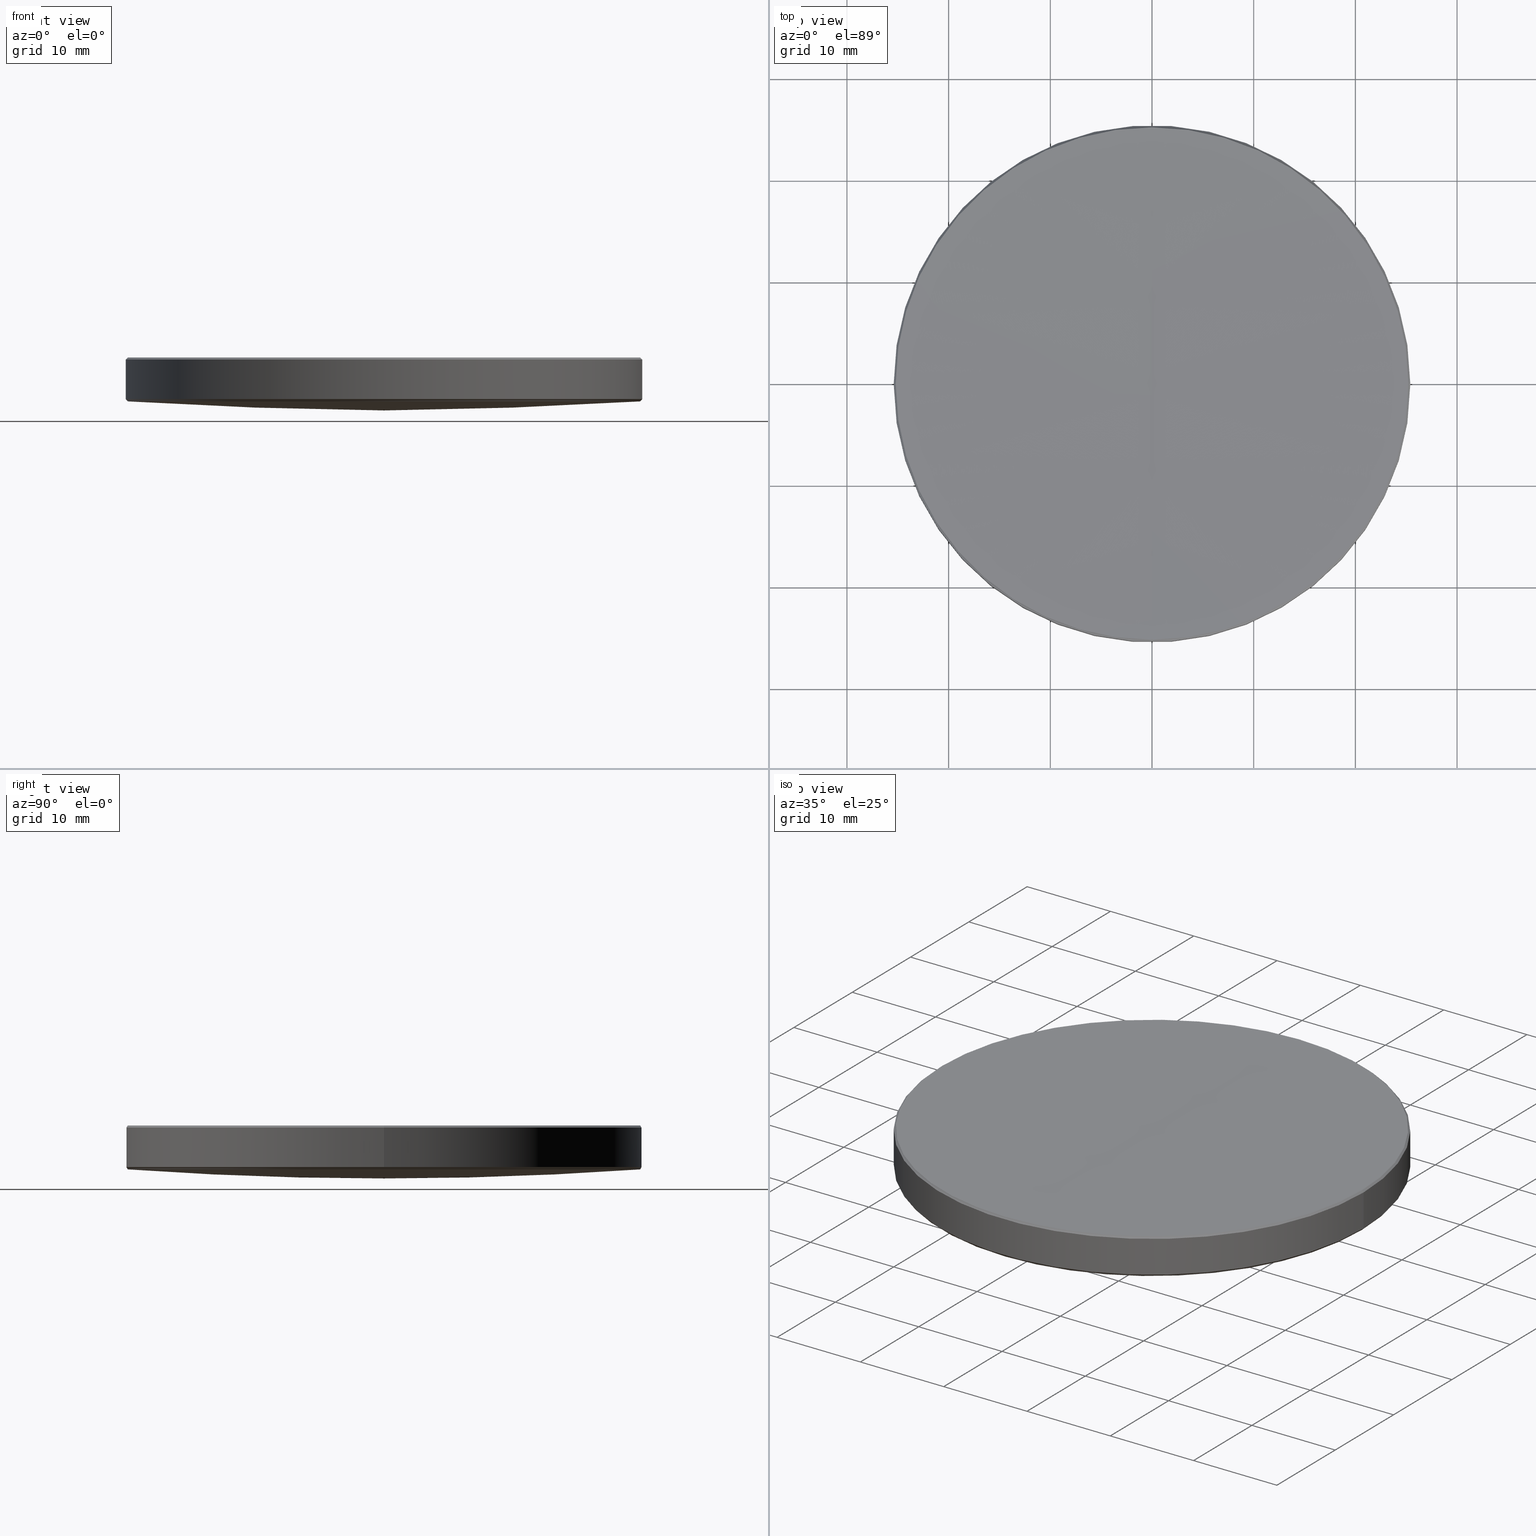
[diagram: canonical four-view strip — front | top / right | iso, engineering-drawing reading convention]
A machine part, canonical four-view strip (front | top / right | iso — engineering-drawing reading convention). The complete STEP part file that produces these views, byte-faithful:
ISO-10303-21;
HEADER;
FILE_DESCRIPTION (( 'STEP AP214' ),
    '1' );
FILE_NAME ('GLM2-050B-1000-UV.STEP',
    '2024-08-09T03:02:07',
    ( 'Windows User' ),
    ( 'P R C' ),
    'SwSTEP 2.0',
    'SolidWorks 2022',
    '' );
FILE_SCHEMA (( 'AUTOMOTIVE_DESIGN' ));
ENDSEC;

DATA;
#1 = DIRECTION ( 'NONE',  ( -0.000000000000000000, -0.000000000000000000, 1.000000000000000000 ) ) ;
#2 = CARTESIAN_POINT ( 'NONE',  ( 0.000000000000000000, 0.000000000000000000, 20.00000000000000000 ) ) ;
#3 = VECTOR ( 'NONE', #100, 1000.000000000000000 ) ;
#4 = ORIENTED_EDGE ( 'NONE', *, *, #16, .F. ) ;
#5 = EDGE_CURVE ( 'NONE', #118, #88, #39, .T. ) ;
#6 =( NAMED_UNIT ( * ) SI_UNIT ( $, .STERADIAN. ) SOLID_ANGLE_UNIT ( ) );
#7 = ORIENTED_EDGE ( 'NONE', *, *, #188, .T. ) ;
#8 = LINE ( 'NONE', #121, #133 ) ;
#9 = AXIS2_PLACEMENT_3D ( 'NONE', #222, #177, #22 ) ;
#10 = ORIENTED_EDGE ( 'NONE', *, *, #327, .T. ) ;
#11 = MECHANICAL_DESIGN_GEOMETRIC_PRESENTATION_REPRESENTATION (  '', ( #184 ), #329 ) ;
#12 = SURFACE_STYLE_USAGE ( .BOTH. , #43 ) ;
#13 = VERTEX_POINT ( 'NONE', #26 ) ;
#14 = APPLICATION_CONTEXT ( 'automotive_design' ) ;
#15 =( NAMED_UNIT ( * ) PLANE_ANGLE_UNIT ( ) SI_UNIT ( $, .RADIAN. ) );
#16 = EDGE_CURVE ( 'NONE', #221, #120, #324, .T. ) ;
#17 = ORIENTED_EDGE ( 'NONE', *, *, #188, .F. ) ;
#18 = AXIS2_PLACEMENT_3D ( 'NONE', #20, #99, #174 ) ;
#19 = AXIS2_PLACEMENT_3D ( 'NONE', #213, #139, #116 ) ;
#20 = CARTESIAN_POINT ( 'NONE',  ( 0.000000000000000000, 0.000000000000000000, 1597.335853264096386 ) ) ;
#21 = EDGE_CURVE ( 'NONE', #13, #142, #79, .T. ) ;
#22 = DIRECTION ( 'NONE',  ( -1.000000000000000000, 0.000000000000000000, 0.000000000000000000 ) ) ;
#23 = FILL_AREA_STYLE_COLOUR ( '', #284 ) ;
#24 = DIRECTION ( 'NONE',  ( 1.000000000000000000, 0.000000000000000000, 0.000000000000000000 ) ) ;
#25 = AXIS2_PLACEMENT_3D ( 'NONE', #36, #50, #227 ) ;
#26 = CARTESIAN_POINT ( 'NONE',  ( -25.39999999999999858, 0.000000000000000000, 13.21592418636929978 ) ) ;
#27 = CARTESIAN_POINT ( 'NONE',  ( 0.000000000000000000, 0.000000000000000000, 17.09999999999989484 ) ) ;
#28 = DIRECTION ( 'NONE',  ( -1.000000000000000000, 0.000000000000000000, 0.000000000000000000 ) ) ;
#29 = AXIS2_PLACEMENT_3D ( 'NONE', #98, #125, #175 ) ;
#30 = ADVANCED_FACE ( 'NONE', ( #276 ), #244, .T. ) ;
#31 = DIRECTION ( 'NONE',  ( -0.000000000000000000, -0.000000000000000000, -1.000000000000000000 ) ) ;
#32 = PRESENTATION_LAYER_ASSIGNMENT (  '', '', ( #184 ) ) ;
#33 = ORIENTED_EDGE ( 'NONE', *, *, #262, .F. ) ;
#34 = CARTESIAN_POINT ( 'NONE',  ( 0.000000000000000000, 0.000000000000000000, 0.000000000000000000 ) ) ;
#35 = ORIENTED_EDGE ( 'NONE', *, *, #21, .T. ) ;
#36 = CARTESIAN_POINT ( 'NONE',  ( 0.000000000000000000, 0.000000000000000000, 1597.335853264096386 ) ) ;
#37 = ORIENTED_EDGE ( 'NONE', *, *, #91, .F. ) ;
#38 = MANIFOLD_SOLID_BREP ( '����1', #54 ) ;
#39 = CIRCLE ( 'NONE', #25, 1580.240000000000236 ) ;
#40 = CIRCLE ( 'NONE', #309, 25.20315217857431023 ) ;
#41 = VERTEX_POINT ( 'NONE', #202 ) ;
#42 = EDGE_CURVE ( 'NONE', #88, #240, #316, .T. ) ;
#43 = SURFACE_SIDE_STYLE ('',( #220 ) ) ;
#44 = ORIENTED_EDGE ( 'NONE', *, *, #273, .F. ) ;
#45 = CARTESIAN_POINT ( 'NONE',  ( 0.000000000000000000, 0.000000000000000000, 12.98581782909002946 ) ) ;
#46 = VERTEX_POINT ( 'NONE', #242 ) ;
#47 = ADVANCED_FACE ( 'NONE', ( #225 ), #58, .T. ) ;
#48 = PRODUCT_DEFINITION_FORMATION_WITH_SPECIFIED_SOURCE ( '�κ�', '', #179, .NOT_KNOWN. ) ;
#49 = DIRECTION ( 'NONE',  ( -1.000000000000000000, 0.000000000000000000, 0.000000000000000000 ) ) ;
#50 = DIRECTION ( 'NONE',  ( -1.000000000000000000, 1.224646799147353207E-16, 0.000000000000000000 ) ) ;
#51 = FACE_OUTER_BOUND ( 'NONE', #148, .T. ) ;
#52 = CARTESIAN_POINT ( 'NONE',  ( 0.000000000000000000, 0.000000000000000000, 17.29684782142548727 ) ) ;
#53 = CARTESIAN_POINT ( 'NONE',  ( -25.39999999999999858, 3.110602869834276865E-15, 13.21592418636929978 ) ) ;
#54 = CLOSED_SHELL ( 'NONE', ( #241, #281, #180, #30, #158, #123, #163, #81, #232, #47 ) ) ;
#55 = AXIS2_PLACEMENT_3D ( 'NONE', #305, #76, #178 ) ;
#56 = SURFACE_STYLE_USAGE ( .BOTH. , #71 ) ;
#57 = DIRECTION ( 'NONE',  ( -0.000000000000000000, -0.000000000000000000, 1.000000000000000000 ) ) ;
#58 = CONICAL_SURFACE ( 'NONE', #299, 25.20315217857427470, 0.7853981633977743515 ) ;
#59 = DIRECTION ( 'NONE',  ( -1.000000000000000000, 0.000000000000000000, 0.000000000000000000 ) ) ;
#60 = CARTESIAN_POINT ( 'NONE',  ( -25.20315217857431023, 0.000000000000000000, 17.29684782142548727 ) ) ;
#61 = AXIS2_PLACEMENT_3D ( 'NONE', #251, #228, #250 ) ;
#62 = ORIENTED_EDGE ( 'NONE', *, *, #21, .F. ) ;
#63 = APPLICATION_PROTOCOL_DEFINITION ( 'draft international standard', 'automotive_design', 1998, #157 ) ;
#64 = ORIENTED_EDGE ( 'NONE', *, *, #16, .T. ) ;
#65 = AXIS2_PLACEMENT_3D ( 'NONE', #304, #271, #150 ) ;
#66 = AXIS2_PLACEMENT_3D ( 'NONE', #85, #59, #254 ) ;
#67 = ORIENTED_EDGE ( 'NONE', *, *, #295, .T. ) ;
#68 =( NAMED_UNIT ( * ) SI_UNIT ( $, .STERADIAN. ) SOLID_ANGLE_UNIT ( ) );
#69 = ORIENTED_EDGE ( 'NONE', *, *, #5, .F. ) ;
#70 = CARTESIAN_POINT ( 'NONE',  ( 0.000000000000000000, 0.000000000000000000, 1597.335853264096386 ) ) ;
#71 = SURFACE_SIDE_STYLE ('',( #126 ) ) ;
#72 = PRODUCT_DEFINITION_SHAPE ( 'NONE', 'NONE',  #131 ) ;
#73 = DIRECTION ( 'NONE',  ( -1.000000000000000000, 1.224646799147353207E-16, 0.000000000000000000 ) ) ;
#74 = FACE_OUTER_BOUND ( 'NONE', #87, .T. ) ;
#75 =( NAMED_UNIT ( * ) PLANE_ANGLE_UNIT ( ) SI_UNIT ( $, .RADIAN. ) );
#76 = DIRECTION ( 'NONE',  ( 0.000000000000000000, 0.000000000000000000, -1.000000000000000000 ) ) ;
#77 = CYLINDRICAL_SURFACE ( 'NONE', #108, 25.39999999999999858 ) ;
#78 = DIRECTION ( 'NONE',  ( -0.000000000000000000, -0.000000000000000000, -1.000000000000000000 ) ) ;
#79 = CIRCLE ( 'NONE', #9, 25.39999999999999858 ) ;
#80 = CONICAL_SURFACE ( 'NONE', #199, 25.39999999999999858, 0.7141275475421955399 ) ;
#81 = ADVANCED_FACE ( 'NONE', ( #196 ), #103, .F. ) ;
#82 = CIRCLE ( 'NONE', #61, 25.39999999999999858 ) ;
#83 = CIRCLE ( 'NONE', #226, 25.20315217857431023 ) ;
#84 = DIRECTION ( 'NONE',  ( 0.000000000000000000, 1.000000000000000000, 0.000000000000000000 ) ) ;
#85 = CARTESIAN_POINT ( 'NONE',  ( 0.000000000000000000, 0.000000000000000000, 1597.335853264096386 ) ) ;
#86 = DIRECTION ( 'NONE',  ( 0.000000000000000000, 0.000000000000000000, 1.000000000000000000 ) ) ;
#87 = EDGE_LOOP ( 'NONE', ( #191, #217, #239, #259, #62 ) ) ;
#88 = VERTEX_POINT ( 'NONE', #171 ) ;
#89 = ORIENTED_EDGE ( 'NONE', *, *, #208, .F. ) ;
#90 = CARTESIAN_POINT ( 'NONE',  ( -25.39999999999999858, 0.000000000000000000, 17.09999999999989484 ) ) ;
#91 = EDGE_CURVE ( 'NONE', #46, #142, #270, .T. ) ;
#92 = ORIENTED_EDGE ( 'NONE', *, *, #247, .T. ) ;
#93 = DIRECTION ( 'NONE',  ( 1.000000000000000000, 0.000000000000000000, 0.000000000000000000 ) ) ;
#94 = ORIENTED_EDGE ( 'NONE', *, *, #302, .F. ) ;
#95 = CIRCLE ( 'NONE', #265, 25.39999999999999858 ) ;
#96 = VERTEX_POINT ( 'NONE', #268 ) ;
#97 =( NAMED_UNIT ( * ) SI_UNIT ( $, .STERADIAN. ) SOLID_ANGLE_UNIT ( ) );
#98 = CARTESIAN_POINT ( 'NONE',  ( 0.000000000000000000, 0.000000000000000000, 17.29684782142548727 ) ) ;
#99 = DIRECTION ( 'NONE',  ( 1.000000000000000000, 0.000000000000000000, 0.000000000000000000 ) ) ;
#100 = DIRECTION ( 'NONE',  ( -0.000000000000000000, -0.000000000000000000, -1.000000000000000000 ) ) ;
#101 = FILL_AREA_STYLE ('',( #23 ) ) ;
#102 = DIRECTION ( 'NONE',  ( 1.000000000000000000, 0.000000000000000000, 0.000000000000000000 ) ) ;
#103 = SPHERICAL_SURFACE ( 'NONE', #236, 1580.240000000000236 ) ;
#104 = DIRECTION ( 'NONE',  ( 0.000000000000000000, 0.000000000000000000, -1.000000000000000000 ) ) ;
#105 = DIRECTION ( 'NONE',  ( -0.000000000000000000, -0.000000000000000000, -1.000000000000000000 ) ) ;
#106 = AXIS2_PLACEMENT_3D ( 'NONE', #34, #86, #283 ) ;
#107 = EDGE_CURVE ( 'NONE', #143, #170, #40, .T. ) ;
#108 = AXIS2_PLACEMENT_3D ( 'NONE', #2, #105, #187 ) ;
#109 = CIRCLE ( 'NONE', #209, 25.20315217857431023 ) ;
#110 = DIRECTION ( 'NONE',  ( 0.000000000000000000, 0.000000000000000000, -1.000000000000000000 ) ) ;
#111 = ORIENTED_EDGE ( 'NONE', *, *, #252, .T. ) ;
#112 = VERTEX_POINT ( 'NONE', #149 ) ;
#113 = DIRECTION ( 'NONE',  ( 0.000000000000000000, 0.000000000000000000, -1.000000000000000000 ) ) ;
#114 = ORIENTED_EDGE ( 'NONE', *, *, #107, .T. ) ;
#115 = EDGE_CURVE ( 'NONE', #118, #143, #144, .T. ) ;
#116 = DIRECTION ( 'NONE',  ( 1.000000000000000000, 0.000000000000000000, 0.000000000000000000 ) ) ;
#117 = VECTOR ( 'NONE', #215, 1000.000000000000227 ) ;
#118 = VERTEX_POINT ( 'NONE', #200 ) ;
#119 = PRESENTATION_STYLE_ASSIGNMENT (( #12 ) ) ;
#120 = VERTEX_POINT ( 'NONE', #301 ) ;
#121 = CARTESIAN_POINT ( 'NONE',  ( 25.20315217857427470, 3.086495964391462737E-15, 17.29684782142548727 ) ) ;
#122 = EDGE_LOOP ( 'NONE', ( #69, #211, #114, #238 ) ) ;
#123 = ADVANCED_FACE ( 'NONE', ( #298 ), #77, .T. ) ;
#124 = CIRCLE ( 'NONE', #168, 25.20055964190958520 ) ;
#125 = DIRECTION ( 'NONE',  ( -0.000000000000000000, -0.000000000000000000, 1.000000000000000000 ) ) ;
#126 = SURFACE_STYLE_FILL_AREA ( #101 ) ;
#127 = DIRECTION ( 'NONE',  ( 0.000000000000000000, 1.000000000000000000, 0.000000000000000000 ) ) ;
#128 = CARTESIAN_POINT ( 'NONE',  ( 0.000000000000000000, 0.000000000000000000, 13.21592418636929978 ) ) ;
#129 = DIRECTION ( 'NONE',  ( 0.000000000000000000, 0.000000000000000000, -1.000000000000000000 ) ) ;
#130 = CARTESIAN_POINT ( 'NONE',  ( 0.000000000000000000, 0.000000000000000000, 13.21592418636929978 ) ) ;
#131 = PRODUCT_DEFINITION ( 'δ֪', '', #48, #172 ) ;
#132 = PRESENTATION_LAYER_ASSIGNMENT (  '', '', ( #269 ) ) ;
#133 = VECTOR ( 'NONE', #192, 1000.000000000000227 ) ;
#134 = CARTESIAN_POINT ( 'NONE',  ( -25.39999999999999858, 0.000000000000000000, 20.00000000000000000 ) ) ;
#135 = EDGE_CURVE ( 'NONE', #96, #323, #246, .T. ) ;
#136 = CIRCLE ( 'NONE', #310, 25.20055964190958520 ) ;
#137 = CARTESIAN_POINT ( 'NONE',  ( 25.39999999999999858, 3.110602869834276865E-15, 13.21592418636929978 ) ) ;
#138 = ORIENTED_EDGE ( 'NONE', *, *, #42, .F. ) ;
#139 = DIRECTION ( 'NONE',  ( -0.000000000000000000, -0.000000000000000000, 1.000000000000000000 ) ) ;
#140 = ORIENTED_EDGE ( 'NONE', *, *, #208, .T. ) ;
#141 = SHAPE_DEFINITION_REPRESENTATION ( #72, #197 ) ;
#142 = VERTEX_POINT ( 'NONE', #137 ) ;
#143 = VERTEX_POINT ( 'NONE', #159 ) ;
#144 = CIRCLE ( 'NONE', #18, 1580.240000000000236 ) ;
#145 = AXIS2_PLACEMENT_3D ( 'NONE', #45, #194, #296 ) ;
#146 = ORIENTED_EDGE ( 'NONE', *, *, #278, .T. ) ;
#147 = LINE ( 'NONE', #289, #117 ) ;
#148 = EDGE_LOOP ( 'NONE', ( #165, #315, #167, #10 ) ) ;
#149 = CARTESIAN_POINT ( 'NONE',  ( 0.000000000000000000, 25.20055964190926545, 12.98581782909005788 ) ) ;
#150 = DIRECTION ( 'NONE',  ( 0.000000000000000000, 1.000000000000000000, 0.000000000000000000 ) ) ;
#151 = EDGE_CURVE ( 'NONE', #112, #46, #124, .T. ) ;
#152 = DIRECTION ( 'NONE',  ( 1.000000000000000000, 0.000000000000000000, 0.000000000000000000 ) ) ;
#153 = DIRECTION ( 'NONE',  ( -1.000000000000000000, 0.000000000000000000, 0.000000000000000000 ) ) ;
#154 = DIRECTION ( 'NONE',  ( -0.6549583843073308875, 8.020926889166948068E-17, 0.7556649487871797133 ) ) ;
#155 = UNCERTAINTY_MEASURE_WITH_UNIT (LENGTH_MEASURE( 1.000000000000000082E-05 ), #330, 'distance_accuracy_value', 'NONE');
#156 = DIRECTION ( 'NONE',  ( -1.000000000000000000, 0.000000000000000000, 0.000000000000000000 ) ) ;
#157 = APPLICATION_CONTEXT ( 'automotive_design' ) ;
#158 = ADVANCED_FACE ( 'NONE', ( #303 ), #206, .T. ) ;
#159 = CARTESIAN_POINT ( 'NONE',  ( 0.000000000000000000, 25.20315217857234202, 17.29684782142537713 ) ) ;
#160 = SPHERICAL_SURFACE ( 'NONE', #230, 356.6899999999999977 ) ;
#161 = ORIENTED_EDGE ( 'NONE', *, *, #107, .F. ) ;
#162 = APPLICATION_PROTOCOL_DEFINITION ( 'draft international standard', 'automotive_design', 1998, #14 ) ;
#163 = ADVANCED_FACE ( 'NONE', ( #282 ), #160, .T. ) ;
#164 = EDGE_LOOP ( 'NONE', ( #285, #320, #33, #260, #161 ) ) ;
#165 = ORIENTED_EDGE ( 'NONE', *, *, #115, .F. ) ;
#166 = FILL_AREA_STYLE ('',( #263 ) ) ;
#167 = ORIENTED_EDGE ( 'NONE', *, *, #42, .T. ) ;
#168 = AXIS2_PLACEMENT_3D ( 'NONE', #210, #229, #311 ) ;
#169 =( LENGTH_UNIT ( ) NAMED_UNIT ( * ) SI_UNIT ( .MILLI., .METRE. ) );
#170 = VERTEX_POINT ( 'NONE', #60 ) ;
#171 = CARTESIAN_POINT ( 'NONE',  ( -3.086495964391225684E-15, -25.20315217857234202, 17.29684782142537713 ) ) ;
#172 = PRODUCT_DEFINITION_CONTEXT ( 'detailed design', #157, 'design' ) ;
#173 =( GEOMETRIC_REPRESENTATION_CONTEXT ( 3 ) GLOBAL_UNCERTAINTY_ASSIGNED_CONTEXT ( ( #155 ) ) GLOBAL_UNIT_ASSIGNED_CONTEXT ( ( #330, #75, #97 ) ) REPRESENTATION_CONTEXT ( 'NONE', 'WORKASPACE' ) );
#174 = DIRECTION ( 'NONE',  ( 0.000000000000000000, 0.000000000000000000, -1.000000000000000000 ) ) ;
#175 = DIRECTION ( 'NONE',  ( 1.000000000000000000, 0.000000000000000000, 0.000000000000000000 ) ) ;
#176 = CARTESIAN_POINT ( 'NONE',  ( 0.000000000000000000, 0.000000000000000000, 368.7844798469995453 ) ) ;
#177 = DIRECTION ( 'NONE',  ( -0.000000000000000000, -0.000000000000000000, 1.000000000000000000 ) ) ;
#178 = DIRECTION ( 'NONE',  ( 1.000000000000000000, 0.000000000000000000, 0.000000000000000000 ) ) ;
#179 = PRODUCT ( 'GLM2-050B-1000-UV', 'GLM2-050B-1000-UV', '', ( #286 ) ) ;
#180 = ADVANCED_FACE ( 'NONE', ( #51 ), #312, .F. ) ;
#181 = AXIS2_PLACEMENT_3D ( 'NONE', #182, #73, #224 ) ;
#182 = CARTESIAN_POINT ( 'NONE',  ( 0.000000000000000000, 0.000000000000000000, 368.7844798469995453 ) ) ;
#183 = CARTESIAN_POINT ( 'NONE',  ( 0.000000000000000000, 0.000000000000000000, 368.7844798469995453 ) ) ;
#184 = STYLED_ITEM ( 'NONE', ( #119 ), #197 ) ;
#185 = EDGE_CURVE ( 'NONE', #323, #13, #255, .T. ) ;
#186 = COLOUR_RGB ( '',1.000000000000000000, 1.000000000000000000, 1.000000000000000000 ) ;
#187 = DIRECTION ( 'NONE',  ( -1.000000000000000000, 0.000000000000000000, 0.000000000000000000 ) ) ;
#188 = EDGE_CURVE ( 'NONE', #221, #112, #253, .T. ) ;
#189 = VECTOR ( 'NONE', #154, 999.9999999999998863 ) ;
#190 = ORIENTED_EDGE ( 'NONE', *, *, #151, .T. ) ;
#191 = ORIENTED_EDGE ( 'NONE', *, *, #252, .F. ) ;
#192 = DIRECTION ( 'NONE',  ( 0.7071067811867780550, 8.659560562357755501E-17, -0.7071067811863169794 ) ) ;
#193 = UNCERTAINTY_MEASURE_WITH_UNIT (LENGTH_MEASURE( 1.000000000000000082E-05 ), #237, 'distance_accuracy_value', 'NONE');
#194 = DIRECTION ( 'NONE',  ( 0.000000000000000000, 0.000000000000000000, -1.000000000000000000 ) ) ;
#195 = ORIENTED_EDGE ( 'NONE', *, *, #135, .F. ) ;
#196 = FACE_OUTER_BOUND ( 'NONE', #122, .T. ) ;
#197 = ADVANCED_BREP_SHAPE_REPRESENTATION ( 'GLM2-050B-1000-UV', ( #38, #106 ), #300 ) ;
#198 = CARTESIAN_POINT ( 'NONE',  ( 25.39999999999999858, 0.000000000000000000, 13.21592418636929978 ) ) ;
#199 = AXIS2_PLACEMENT_3D ( 'NONE', #128, #331, #102 ) ;
#200 = CARTESIAN_POINT ( 'NONE',  ( 0.000000000000000000, 9.676179289423068622E-14, 17.09585326409612804 ) ) ;
#201 = CARTESIAN_POINT ( 'NONE',  ( 0.000000000000000000, 2.184096333939347168E-14, 12.09447984699951739 ) ) ;
#202 = CARTESIAN_POINT ( 'NONE',  ( -25.20055964190958520, 3.098390670026466009E-15, 12.98581782909002946 ) ) ;
#203 = CARTESIAN_POINT ( 'NONE',  ( 25.20315217857431023, 3.098549417112872365E-15, 17.29684782142548727 ) ) ;
#204 = CARTESIAN_POINT ( 'NONE',  ( 0.000000000000000000, 0.000000000000000000, 17.29684782142548727 ) ) ;
#205 = CARTESIAN_POINT ( 'NONE',  ( 0.000000000000000000, 0.000000000000000000, 17.29684782142548727 ) ) ;
#206 = CYLINDRICAL_SURFACE ( 'NONE', #294, 25.39999999999999858 ) ;
#207 = CIRCLE ( 'NONE', #55, 25.20055964190958520 ) ;
#208 = EDGE_CURVE ( 'NONE', #96, #142, #280, .T. ) ;
#209 = AXIS2_PLACEMENT_3D ( 'NONE', #205, #57, #152 ) ;
#210 = CARTESIAN_POINT ( 'NONE',  ( 0.000000000000000000, 0.000000000000000000, 12.98581782909002946 ) ) ;
#211 = ORIENTED_EDGE ( 'NONE', *, *, #115, .T. ) ;
#212 = ORIENTED_EDGE ( 'NONE', *, *, #218, .F. ) ;
#213 = CARTESIAN_POINT ( 'NONE',  ( 0.000000000000000000, 0.000000000000000000, 13.21592418636929978 ) ) ;
#214 = AXIS2_PLACEMENT_3D ( 'NONE', #332, #129, #156 ) ;
#215 = DIRECTION ( 'NONE',  ( -0.7071067811867780550, 0.000000000000000000, -0.7071067811863169794 ) ) ;
#216 = ORIENTED_EDGE ( 'NONE', *, *, #278, .F. ) ;
#217 = ORIENTED_EDGE ( 'NONE', *, *, #295, .F. ) ;
#218 = EDGE_CURVE ( 'NONE', #170, #88, #109, .T. ) ;
#219 = EDGE_LOOP ( 'NONE', ( #233, #140, #292, #264 ) ) ;
#220 = SURFACE_STYLE_FILL_AREA ( #166 ) ;
#221 = VERTEX_POINT ( 'NONE', #201 ) ;
#222 = CARTESIAN_POINT ( 'NONE',  ( 0.000000000000000000, 0.000000000000000000, 13.21592418636929978 ) ) ;
#223 = PRODUCT_RELATED_PRODUCT_CATEGORY ( 'part', '', ( #179 ) ) ;
#224 = DIRECTION ( 'NONE',  ( -1.224646799147353207E-16, -1.000000000000000000, 0.000000000000000000 ) ) ;
#225 = FACE_OUTER_BOUND ( 'NONE', #287, .T. ) ;
#226 = AXIS2_PLACEMENT_3D ( 'NONE', #258, #313, #291 ) ;
#227 = DIRECTION ( 'NONE',  ( -1.224646799147353207E-16, -1.000000000000000000, 0.000000000000000000 ) ) ;
#228 = DIRECTION ( 'NONE',  ( 0.000000000000000000, 0.000000000000000000, -1.000000000000000000 ) ) ;
#229 = DIRECTION ( 'NONE',  ( 0.000000000000000000, 0.000000000000000000, -1.000000000000000000 ) ) ;
#230 = AXIS2_PLACEMENT_3D ( 'NONE', #176, #328, #84 ) ;
#231 = CARTESIAN_POINT ( 'NONE',  ( 0.000000000000000000, 0.000000000000000000, 20.00000000000000000 ) ) ;
#232 = ADVANCED_FACE ( 'NONE', ( #74 ), #80, .T. ) ;
#233 = ORIENTED_EDGE ( 'NONE', *, *, #262, .T. ) ;
#234 = FACE_OUTER_BOUND ( 'NONE', #261, .T. ) ;
#235 = EDGE_LOOP ( 'NONE', ( #4, #7, #190, #92 ) ) ;
#236 = AXIS2_PLACEMENT_3D ( 'NONE', #70, #49, #127 ) ;
#237 =( LENGTH_UNIT ( ) NAMED_UNIT ( * ) SI_UNIT ( .MILLI., .METRE. ) );
#238 = ORIENTED_EDGE ( 'NONE', *, *, #218, .T. ) ;
#239 = ORIENTED_EDGE ( 'NONE', *, *, #247, .F. ) ;
#240 = VERTEX_POINT ( 'NONE', #203 ) ;
#241 = ADVANCED_FACE ( 'NONE', ( #307 ), #266, .T. ) ;
#242 = CARTESIAN_POINT ( 'NONE',  ( 25.20055964190958520, 0.000000000000000000, 12.98581782909002946 ) ) ;
#243 = DIRECTION ( 'NONE',  ( -0.000000000000000000, -0.000000000000000000, 1.000000000000000000 ) ) ;
#244 = SPHERICAL_SURFACE ( 'NONE', #65, 356.6899999999999977 ) ;
#245 = DIRECTION ( 'NONE',  ( 1.000000000000000000, -0.000000000000000000, 0.000000000000000000 ) ) ;
#246 = CIRCLE ( 'NONE', #293, 25.39999999999999858 ) ;
#247 = EDGE_CURVE ( 'NONE', #46, #120, #207, .T. ) ;
#248 = CONICAL_SURFACE ( 'NONE', #19, 25.39999999999999858, 0.7141275475421955399 ) ;
#249 = DIRECTION ( 'NONE',  ( 0.6549583843073308875, 0.000000000000000000, 0.7556649487871797133 ) ) ;
#250 = DIRECTION ( 'NONE',  ( 1.000000000000000000, 0.000000000000000000, 0.000000000000000000 ) ) ;
#251 = CARTESIAN_POINT ( 'NONE',  ( 0.000000000000000000, 0.000000000000000000, 17.09999999999989484 ) ) ;
#252 = EDGE_CURVE ( 'NONE', #41, #13, #274, .T. ) ;
#253 = CIRCLE ( 'NONE', #275, 356.6899999999999977 ) ;
#254 = DIRECTION ( 'NONE',  ( 0.000000000000000000, 1.000000000000000000, 0.000000000000000000 ) ) ;
#255 = LINE ( 'NONE', #134, #318 ) ;
#256 = MECHANICAL_DESIGN_GEOMETRIC_PRESENTATION_REPRESENTATION (  '', ( #269 ), #173 ) ;
#257 = CIRCLE ( 'NONE', #145, 25.20055964190958520 ) ;
#258 = CARTESIAN_POINT ( 'NONE',  ( 0.000000000000000000, 0.000000000000000000, 17.29684782142548727 ) ) ;
#259 = ORIENTED_EDGE ( 'NONE', *, *, #91, .T. ) ;
#260 = ORIENTED_EDGE ( 'NONE', *, *, #308, .F. ) ;
#261 = EDGE_LOOP ( 'NONE', ( #216, #111, #44, #37, #267 ) ) ;
#262 = EDGE_CURVE ( 'NONE', #323, #96, #82, .T. ) ;
#263 = FILL_AREA_STYLE_COLOUR ( '', #186 ) ;
#264 = ORIENTED_EDGE ( 'NONE', *, *, #185, .F. ) ;
#265 = AXIS2_PLACEMENT_3D ( 'NONE', #130, #1, #28 ) ;
#266 = CONICAL_SURFACE ( 'NONE', #214, 25.20315217857427470, 0.7853981633977743515 ) ;
#267 = ORIENTED_EDGE ( 'NONE', *, *, #151, .F. ) ;
#268 = CARTESIAN_POINT ( 'NONE',  ( 25.39999999999999858, 3.110602869834276865E-15, 17.09999999999989484 ) ) ;
#269 = STYLED_ITEM ( 'NONE', ( #326 ), #38 ) ;
#270 = LINE ( 'NONE', #198, #279 ) ;
#271 = DIRECTION ( 'NONE',  ( -1.000000000000000000, 0.000000000000000000, 0.000000000000000000 ) ) ;
#272 = DIRECTION ( 'NONE',  ( -1.000000000000000000, 0.000000000000000000, 0.000000000000000000 ) ) ;
#273 = EDGE_CURVE ( 'NONE', #142, #13, #95, .T. ) ;
#274 = LINE ( 'NONE', #53, #189 ) ;
#275 = AXIS2_PLACEMENT_3D ( 'NONE', #183, #245, #104 ) ;
#276 = FACE_OUTER_BOUND ( 'NONE', #290, .T. ) ;
#277 = CARTESIAN_POINT ( 'NONE',  ( 25.39999999999999858, 3.110602869834276865E-15, 20.00000000000000000 ) ) ;
#278 = EDGE_CURVE ( 'NONE', #41, #112, #257, .T. ) ;
#279 = VECTOR ( 'NONE', #249, 999.9999999999998863 ) ;
#280 = LINE ( 'NONE', #277, #3 ) ;
#281 = ADVANCED_FACE ( 'NONE', ( #234 ), #248, .T. ) ;
#282 = FACE_OUTER_BOUND ( 'NONE', #235, .T. ) ;
#283 = DIRECTION ( 'NONE',  ( 1.000000000000000000, 0.000000000000000000, 0.000000000000000000 ) ) ;
#284 = COLOUR_RGB ( '',1.000000000000000000, 1.000000000000000000, 1.000000000000000000 ) ;
#285 = ORIENTED_EDGE ( 'NONE', *, *, #327, .F. ) ;
#286 = PRODUCT_CONTEXT ( 'NONE', #14, 'mechanical' ) ;
#287 = EDGE_LOOP ( 'NONE', ( #94, #138, #212, #322, #195 ) ) ;
#288 = EDGE_LOOP ( 'NONE', ( #89, #314, #317, #35 ) ) ;
#289 = CARTESIAN_POINT ( 'NONE',  ( -25.20315217857427470, 0.000000000000000000, 17.29684782142548727 ) ) ;
#290 = EDGE_LOOP ( 'NONE', ( #17, #64, #67, #146 ) ) ;
#291 = DIRECTION ( 'NONE',  ( 1.000000000000000000, 0.000000000000000000, 0.000000000000000000 ) ) ;
#292 = ORIENTED_EDGE ( 'NONE', *, *, #273, .T. ) ;
#293 = AXIS2_PLACEMENT_3D ( 'NONE', #27, #110, #24 ) ;
#294 = AXIS2_PLACEMENT_3D ( 'NONE', #231, #78, #272 ) ;
#295 = EDGE_CURVE ( 'NONE', #120, #41, #136, .T. ) ;
#296 = DIRECTION ( 'NONE',  ( 1.000000000000000000, 0.000000000000000000, 0.000000000000000000 ) ) ;
#297 = UNCERTAINTY_MEASURE_WITH_UNIT (LENGTH_MEASURE( 1.000000000000000082E-05 ), #169, 'distance_accuracy_value', 'NONE');
#298 = FACE_OUTER_BOUND ( 'NONE', #288, .T. ) ;
#299 = AXIS2_PLACEMENT_3D ( 'NONE', #52, #325, #153 ) ;
#300 =( GEOMETRIC_REPRESENTATION_CONTEXT ( 3 ) GLOBAL_UNCERTAINTY_ASSIGNED_CONTEXT ( ( #193 ) ) GLOBAL_UNIT_ASSIGNED_CONTEXT ( ( #237, #319, #68 ) ) REPRESENTATION_CONTEXT ( 'NONE', 'WORKASPACE' ) );
#301 = CARTESIAN_POINT ( 'NONE',  ( -3.086178470218615315E-15, -25.20055964190926545, 12.98581782909005788 ) ) ;
#302 = EDGE_CURVE ( 'NONE', #240, #96, #8, .T. ) ;
#303 = FACE_OUTER_BOUND ( 'NONE', #219, .T. ) ;
#304 = CARTESIAN_POINT ( 'NONE',  ( 0.000000000000000000, 0.000000000000000000, 368.7844798469995453 ) ) ;
#305 = CARTESIAN_POINT ( 'NONE',  ( 0.000000000000000000, 0.000000000000000000, 12.98581782909002946 ) ) ;
#306 = DIRECTION ( 'NONE',  ( 1.000000000000000000, 0.000000000000000000, 0.000000000000000000 ) ) ;
#307 = FACE_OUTER_BOUND ( 'NONE', #164, .T. ) ;
#308 = EDGE_CURVE ( 'NONE', #170, #323, #147, .T. ) ;
#309 = AXIS2_PLACEMENT_3D ( 'NONE', #204, #243, #306 ) ;
#310 = AXIS2_PLACEMENT_3D ( 'NONE', #321, #113, #93 ) ;
#311 = DIRECTION ( 'NONE',  ( 1.000000000000000000, 0.000000000000000000, 0.000000000000000000 ) ) ;
#312 = SPHERICAL_SURFACE ( 'NONE', #66, 1580.240000000000236 ) ;
#313 = DIRECTION ( 'NONE',  ( -0.000000000000000000, -0.000000000000000000, 1.000000000000000000 ) ) ;
#314 = ORIENTED_EDGE ( 'NONE', *, *, #135, .T. ) ;
#315 = ORIENTED_EDGE ( 'NONE', *, *, #5, .T. ) ;
#316 = CIRCLE ( 'NONE', #29, 25.20315217857431023 ) ;
#317 = ORIENTED_EDGE ( 'NONE', *, *, #185, .T. ) ;
#318 = VECTOR ( 'NONE', #31, 1000.000000000000000 ) ;
#319 =( NAMED_UNIT ( * ) PLANE_ANGLE_UNIT ( ) SI_UNIT ( $, .RADIAN. ) );
#320 = ORIENTED_EDGE ( 'NONE', *, *, #302, .T. ) ;
#321 = CARTESIAN_POINT ( 'NONE',  ( 0.000000000000000000, 0.000000000000000000, 12.98581782909002946 ) ) ;
#322 = ORIENTED_EDGE ( 'NONE', *, *, #308, .T. ) ;
#323 = VERTEX_POINT ( 'NONE', #90 ) ;
#324 = CIRCLE ( 'NONE', #181, 356.6899999999999977 ) ;
#325 = DIRECTION ( 'NONE',  ( 0.000000000000000000, 0.000000000000000000, -1.000000000000000000 ) ) ;
#326 = PRESENTATION_STYLE_ASSIGNMENT (( #56 ) ) ;
#327 = EDGE_CURVE ( 'NONE', #240, #143, #83, .T. ) ;
#328 = DIRECTION ( 'NONE',  ( -1.000000000000000000, 0.000000000000000000, 0.000000000000000000 ) ) ;
#329 =( GEOMETRIC_REPRESENTATION_CONTEXT ( 3 ) GLOBAL_UNCERTAINTY_ASSIGNED_CONTEXT ( ( #297 ) ) GLOBAL_UNIT_ASSIGNED_CONTEXT ( ( #169, #15, #6 ) ) REPRESENTATION_CONTEXT ( 'NONE', 'WORKASPACE' ) );
#330 =( LENGTH_UNIT ( ) NAMED_UNIT ( * ) SI_UNIT ( .MILLI., .METRE. ) );
#331 = DIRECTION ( 'NONE',  ( -0.000000000000000000, -0.000000000000000000, 1.000000000000000000 ) ) ;
#332 = CARTESIAN_POINT ( 'NONE',  ( 0.000000000000000000, 0.000000000000000000, 17.29684782142548727 ) ) ;
ENDSEC;
END-ISO-10303-21;
